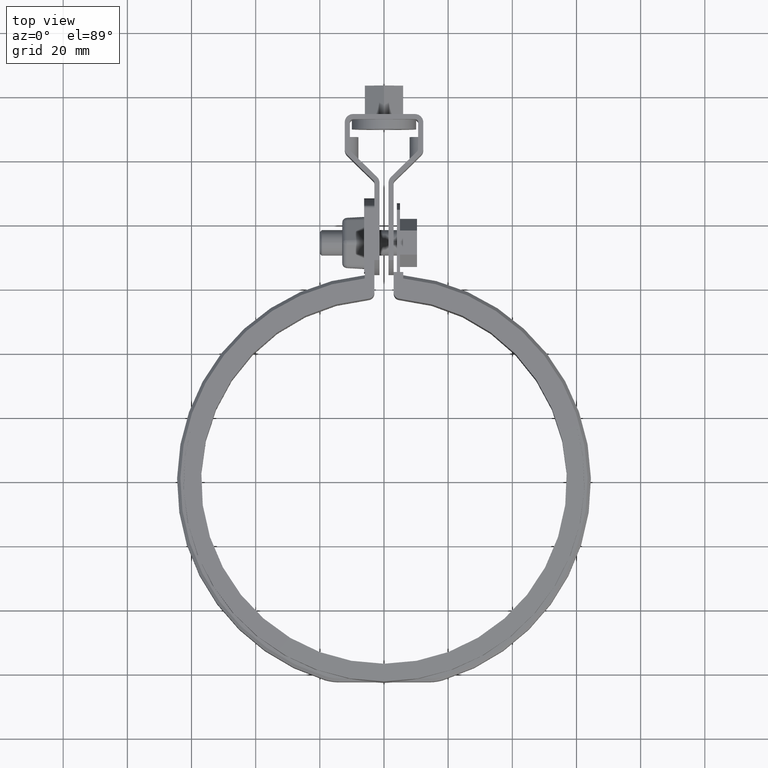
[diagram: clean part render]
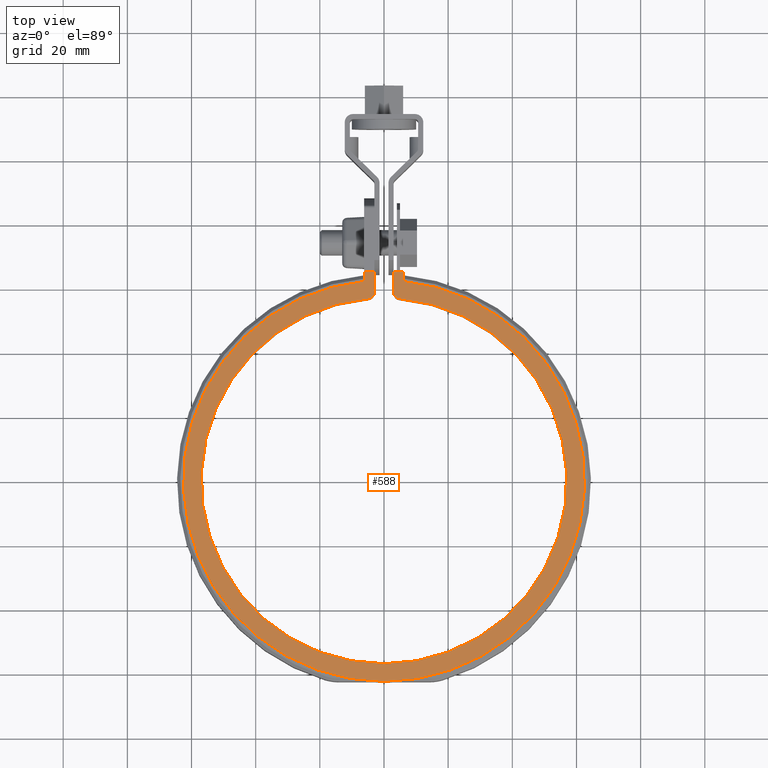
[diagram: same view with one face highlighted and labeled with its STEP entity id]
A machine part, top view. The second image highlights one B-rep face of the part: STEP entity #588.
In plain terms, the highlighted planar face has unit normal (0, 0, -1).
Its self-contained STEP definition (entity closure, byte-faithful):
#588 = ADVANCED_FACE( '', ( #1071 ), #1072, .F. );
#1071 = FACE_OUTER_BOUND( '', #2359, .T. );
#1072 = PLANE( '', #2360 );
#2359 = EDGE_LOOP( '', ( #4937, #4938, #4939, #4940, #4941, #4942, #4943, #4944, #4945, #4946 ) );
#2360 = AXIS2_PLACEMENT_3D( '', #4947, #4948, #4949 );
#4937 = ORIENTED_EDGE( '', *, *, #7055, .F. );
#4938 = ORIENTED_EDGE( '', *, *, #6988, .T. );
#4939 = ORIENTED_EDGE( '', *, *, #7007, .T. );
#4940 = ORIENTED_EDGE( '', *, *, #6981, .T. );
#4941 = ORIENTED_EDGE( '', *, *, #6954, .F. );
#4942 = ORIENTED_EDGE( '', *, *, #7048, .T. );
#4943 = ORIENTED_EDGE( '', *, *, #6959, .T. );
#4944 = ORIENTED_EDGE( '', *, *, #7067, .T. );
#4945 = ORIENTED_EDGE( '', *, *, #7063, .T. );
#4946 = ORIENTED_EDGE( '', *, *, #7093, .T. );
#4947 = CARTESIAN_POINT( '', ( 5.23473201315517, 60.6634495591980, 14.0000000000000 ) );
#4948 = DIRECTION( '', ( 0.000000000000000, 0.000000000000000, -1.00000000000000 ) );
#4949 = DIRECTION( '', ( 0.112903225806450, 0.993605989113642, 0.000000000000000 ) );
#6954 = EDGE_CURVE( '', #8071, #8067, #8073, .T. );
#6959 = EDGE_CURVE( '', #8082, #8083, #8084, .T. );
#6981 = EDGE_CURVE( '', #8113, #8067, #8114, .T. );
#6988 = EDGE_CURVE( '', #8125, #8126, #8127, .T. );
#7007 = EDGE_CURVE( '', #8126, #8113, #8161, .T. );
#7048 = EDGE_CURVE( '', #8071, #8082, #8227, .T. );
#7055 = EDGE_CURVE( '', #8125, #8236, #8237, .T. );
#7063 = EDGE_CURVE( '', #8246, #8247, #8248, .T. );
#7067 = EDGE_CURVE( '', #8083, #8246, #8254, .T. );
#7093 = EDGE_CURVE( '', #8247, #8236, #8288, .T. );
#8067 = VERTEX_POINT( '', #11779 );
#8071 = VERTEX_POINT( '', #11785 );
#8073 = LINE( '', #11788, #11789 );
#8082 = VERTEX_POINT( '', #11802 );
#8083 = VERTEX_POINT( '', #11803 );
#8084 = CIRCLE( '', #11804, 2.00000000000000 );
#8113 = VERTEX_POINT( '', #11853 );
#8114 = LINE( '', #11854, #11855 );
#8125 = VERTEX_POINT( '', #11874 );
#8126 = VERTEX_POINT( '', #11875 );
#8127 = LINE( '', #11876, #11877 );
#8161 = CIRCLE( '', #11945, 62.5000000000000 );
#8227 = LINE( '', #12033, #12034 );
#8236 = VERTEX_POINT( '', #12068 );
#8237 = LINE( '', #12069, #12070 );
#8246 = VERTEX_POINT( '', #12089 );
#8247 = VERTEX_POINT( '', #12090 );
#8248 = CIRCLE( '', #12091, 2.00000000000000 );
#8254 = CIRCLE( '', #12099, 57.0000000000000 );
#8288 = LINE( '', #12149, #12150 );
#11779 = CARTESIAN_POINT( '', ( 6.00000000000001, 65.1079687635941, 14.0000000000000 ) );
#11785 = CARTESIAN_POINT( '', ( 3.00000000000000, 65.1079687635941, 14.0000000000000 ) );
#11788 = CARTESIAN_POINT( '', ( 5.23473201315517, 65.1079687635941, 14.0000000000000 ) );
#11789 = VECTOR( '', #13866, 1000.00000000000 );
#11802 = CARTESIAN_POINT( '', ( 3.00000000000000, 58.7877538267963, 14.0000000000000 ) );
#11803 = CARTESIAN_POINT( '', ( 4.83050847457626, 56.7949486123287, 14.0000000000000 ) );
#11804 = AXIS2_PLACEMENT_3D( '', #13871, #13872, #13873 );
#11853 = CARTESIAN_POINT( '', ( 6.00000000000003, 62.2113333726259, 14.0000000000000 ) );
#11854 = CARTESIAN_POINT( '', ( 6.00000000000000, 62.2113333726259, 14.0000000000000 ) );
#11855 = VECTOR( '', #13900, 1000.00000000000 );
#11874 = CARTESIAN_POINT( '', ( -6.00000000000000, 65.1079687635941, 14.0000000000000 ) );
#11875 = CARTESIAN_POINT( '', ( -6.00000000000000, 62.2113333726259, 14.0000000000000 ) );
#11876 = CARTESIAN_POINT( '', ( -6.00000000000000, 65.1500000000000, 14.0000000000000 ) );
#11877 = VECTOR( '', #13906, 1000.00000000000 );
#11945 = AXIS2_PLACEMENT_3D( '', #13928, #13929, #13930 );
#12033 = CARTESIAN_POINT( '', ( 3.00000000000000, 65.1500000000000, 14.0000000000000 ) );
#12034 = VECTOR( '', #14007, 1000.00000000000 );
#12068 = CARTESIAN_POINT( '', ( -2.99999999999995, 65.1079687635941, 14.0000000000000 ) );
#12069 = CARTESIAN_POINT( '', ( 5.23473201315517, 65.1079687635941, 14.0000000000000 ) );
#12070 = VECTOR( '', #14010, 1000.00000000000 );
#12089 = CARTESIAN_POINT( '', ( -4.83050847457618, 56.7949486123287, 14.0000000000000 ) );
#12090 = CARTESIAN_POINT( '', ( -2.99999999999995, 58.7877538267963, 14.0000000000000 ) );
#12091 = AXIS2_PLACEMENT_3D( '', #14017, #14018, #14019 );
#12099 = AXIS2_PLACEMENT_3D( '', #14025, #14026, #14027 );
#12149 = CARTESIAN_POINT( '', ( -2.99999999999995, 58.7877538267963, 14.0000000000000 ) );
#12150 = VECTOR( '', #14071, 1000.00000000000 );
#13866 = DIRECTION( '', ( 1.00000000000000, 0.000000000000000, 0.000000000000000 ) );
#13871 = CARTESIAN_POINT( '', ( 5.00000000000000, 58.7877538267963, 14.0000000000000 ) );
#13872 = DIRECTION( '', ( 0.000000000000000, 0.000000000000000, 1.00000000000000 ) );
#13873 = DIRECTION( '', ( -1.00000000000000, 1.23512311489549E-015, 0.000000000000000 ) );
#13900 = DIRECTION( '', ( 4.16333634234434E-017, 1.00000000000000, 0.000000000000000 ) );
#13906 = DIRECTION( '', ( -4.16333634234434E-017, -1.00000000000000, 0.000000000000000 ) );
#13928 = CARTESIAN_POINT( '', ( -8.67361737988404E-016, -6.93889390390723E-015, 14.0000000000000 ) );
#13929 = DIRECTION( '', ( 0.000000000000000, 0.000000000000000, 1.00000000000000 ) );
#13930 = DIRECTION( '', ( 1.00000000000000, -4.16333634234434E-017, 0.000000000000000 ) );
#14007 = DIRECTION( '', ( 0.000000000000000, -1.00000000000000, 0.000000000000000 ) );
#14010 = DIRECTION( '', ( 1.00000000000000, 0.000000000000000, 0.000000000000000 ) );
#14017 = CARTESIAN_POINT( '', ( -4.99999999999995, 58.7877538267963, 14.0000000000000 ) );
#14018 = DIRECTION( '', ( 0.000000000000000, 0.000000000000000, 1.00000000000000 ) );
#14019 = DIRECTION( '', ( 1.00000000000000, -1.19348975147204E-015, 0.000000000000000 ) );
#14025 = CARTESIAN_POINT( '', ( 2.60208521396521E-015, 3.46944695195361E-014, 14.0000000000000 ) );
#14026 = DIRECTION( '', ( 0.000000000000000, 0.000000000000000, -1.00000000000000 ) );
#14027 = DIRECTION( '', ( 1.00000000000000, 0.000000000000000, 0.000000000000000 ) );
#14071 = DIRECTION( '', ( 0.000000000000000, 1.00000000000000, 0.000000000000000 ) );